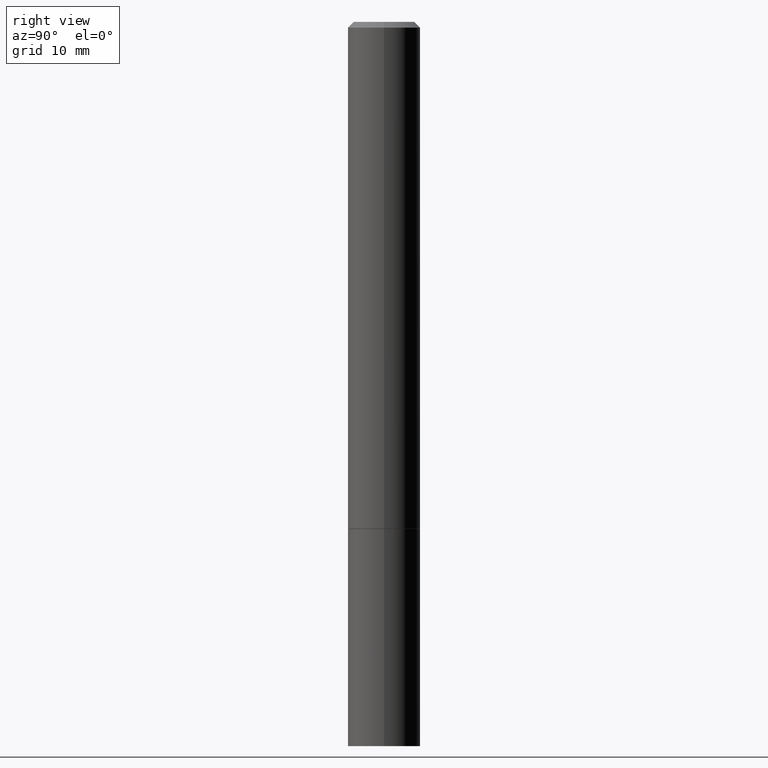
[diagram: clean part render]
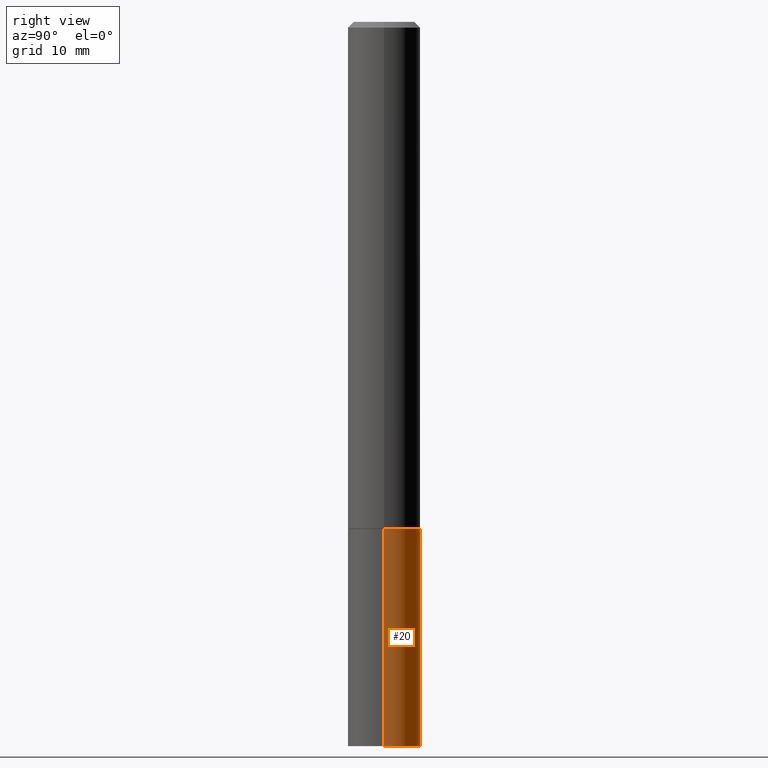
[diagram: same view with one face highlighted and labeled with its STEP entity id]
A machine part, right view. The second image highlights one B-rep face of the part: STEP entity #20.
In plain terms, the highlighted cylindrical surface (edge-blend (fillet) strip) has radius 3.175 mm, axis along (-0, 0, 1).
Its self-contained STEP definition (entity closure, byte-faithful):
#5 = DIRECTION ( 'NONE',  ( -2.445468806185136877E-29, 3.491481338843145188E-15, 1.000000000000000000 ) ) ;
#20 = ADVANCED_FACE ( 'NONE', ( #178 ), #149, .T. ) ;
#30 = VERTEX_POINT ( 'NONE', #317 ) ;
#37 = VECTOR ( 'NONE', #5, 39.37007874015748143 ) ;
#38 = CARTESIAN_POINT ( 'NONE',  ( 6.113672015462842613E-29, -8.728703347107864943E-15, -2.500000000000000000 ) ) ;
#42 = VERTEX_POINT ( 'NONE', #157 ) ;
#51 = CIRCLE ( 'NONE', #146, 0.1250000000000000000 ) ;
#57 = EDGE_CURVE ( 'NONE', #111, #30, #99, .T. ) ;
#61 = CIRCLE ( 'NONE', #103, 0.1250000000000000000 ) ;
#63 = EDGE_CURVE ( 'NONE', #42, #30, #51, .T. ) ;
#92 = DIRECTION ( 'NONE',  ( 1.000000000000000000, -6.982962677686266711E-15, 4.876176775795935793E-29 ) ) ;
#93 = CARTESIAN_POINT ( 'NONE',  ( 0.1250000000000000000, -8.728703347107833388E-16, 6.095220969744919741E-30 ) ) ;
#96 = DIRECTION ( 'NONE',  ( -2.445468806185136597E-29, 3.491481338843145583E-15, 1.000000000000000000 ) ) ;
#99 = LINE ( 'NONE', #237, #37 ) ;
#103 = AXIS2_PLACEMENT_3D ( 'NONE', #38, #96, #130 ) ;
#111 = VERTEX_POINT ( 'NONE', #160 ) ;
#116 = ORIENTED_EDGE ( 'NONE', *, *, #57, .T. ) ;
#122 = DIRECTION ( 'NONE',  ( 1.000000000000000000, -6.982962677686262766E-15, 0.000000000000000000 ) ) ;
#127 = DIRECTION ( 'NONE',  ( -2.445468806185136877E-29, 3.491481338843145188E-15, 1.000000000000000000 ) ) ;
#130 = DIRECTION ( 'NONE',  ( 1.000000000000000000, -6.982962677686270655E-15, 0.000000000000000000 ) ) ;
#146 = AXIS2_PLACEMENT_3D ( 'NONE', #325, #296, #122 ) ;
#149 = CYLINDRICAL_SURFACE ( 'NONE', #302, 0.1250000000000000000 ) ;
#155 = VECTOR ( 'NONE', #127, 39.37007874015748143 ) ;
#157 = CARTESIAN_POINT ( 'NONE',  ( 0.1250000000000000000, -6.982962677686288010E-15, -1.750000000000000222 ) ) ;
#160 = CARTESIAN_POINT ( 'NONE',  ( -0.1250000000000000000, -6.531219425341559180E-15, -2.500000000000000000 ) ) ;
#161 = EDGE_CURVE ( 'NONE', #361, #42, #204, .T. ) ;
#168 = ORIENTED_EDGE ( 'NONE', *, *, #223, .T. ) ;
#177 = ORIENTED_EDGE ( 'NONE', *, *, #63, .F. ) ;
#178 = FACE_OUTER_BOUND ( 'NONE', #203, .T. ) ;
#203 = EDGE_LOOP ( 'NONE', ( #168, #116, #177, #339 ) ) ;
#204 = LINE ( 'NONE', #93, #155 ) ;
#223 = EDGE_CURVE ( 'NONE', #361, #111, #61, .T. ) ;
#237 = CARTESIAN_POINT ( 'NONE',  ( -0.1250000000000000000, 8.881784197001252323E-16, -6.148668862818632227E-30 ) ) ;
#260 = DIRECTION ( 'NONE',  ( -2.445468806185136597E-29, 3.491481338843145583E-15, 1.000000000000000000 ) ) ;
#270 = CARTESIAN_POINT ( 'NONE',  ( 0.000000000000000000, 0.000000000000000000, 0.000000000000000000 ) ) ;
#296 = DIRECTION ( 'NONE',  ( -2.445468806185136597E-29, 3.491481338843145583E-15, 1.000000000000000000 ) ) ;
#299 = CARTESIAN_POINT ( 'NONE',  ( 0.1250000000000000000, -9.601573681818648281E-15, -2.500000000000000000 ) ) ;
#302 = AXIS2_PLACEMENT_3D ( 'NONE', #270, #260, #92 ) ;
#317 = CARTESIAN_POINT ( 'NONE',  ( -0.1250000000000000000, -6.531219425341559180E-15, -1.750000000000000222 ) ) ;
#325 = CARTESIAN_POINT ( 'NONE',  ( 4.279570410823989044E-29, -6.110092342975505460E-15, -1.750000000000000222 ) ) ;
#339 = ORIENTED_EDGE ( 'NONE', *, *, #161, .F. ) ;
#361 = VERTEX_POINT ( 'NONE', #299 ) ;